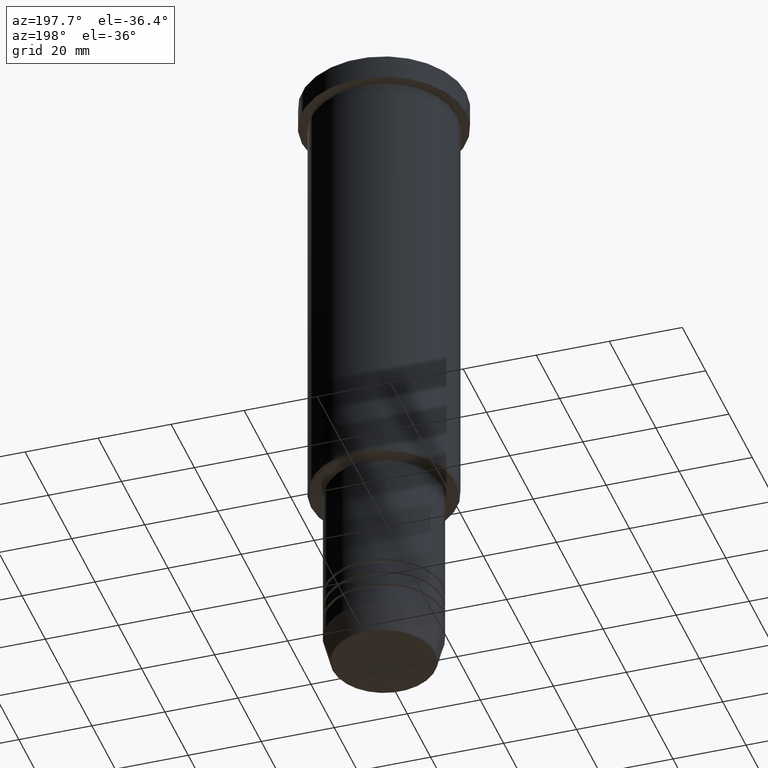
[diagram: clean part render]
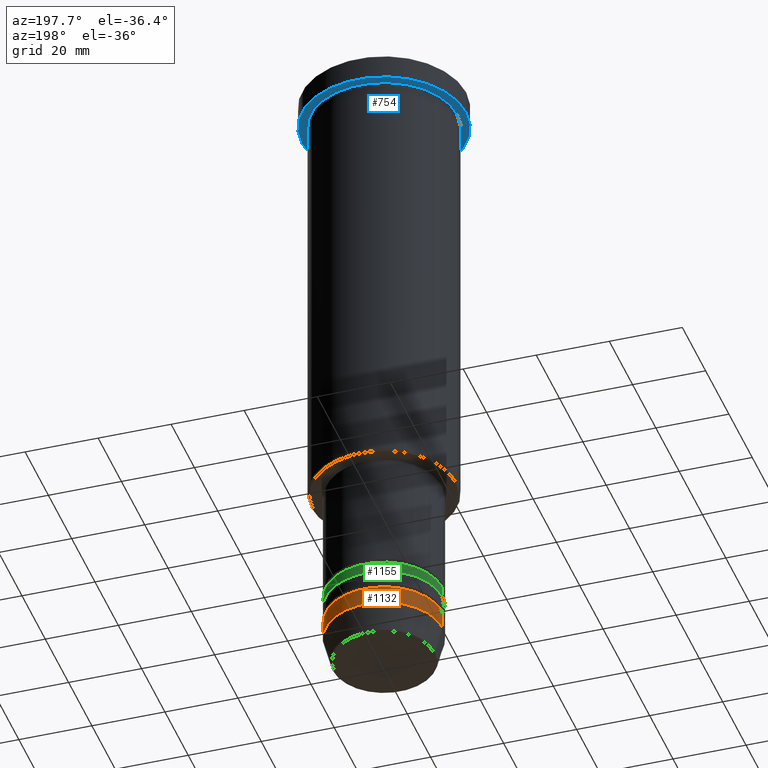
[diagram: same view with three faces highlighted in distinct colors, each labeled with its STEP entity id]
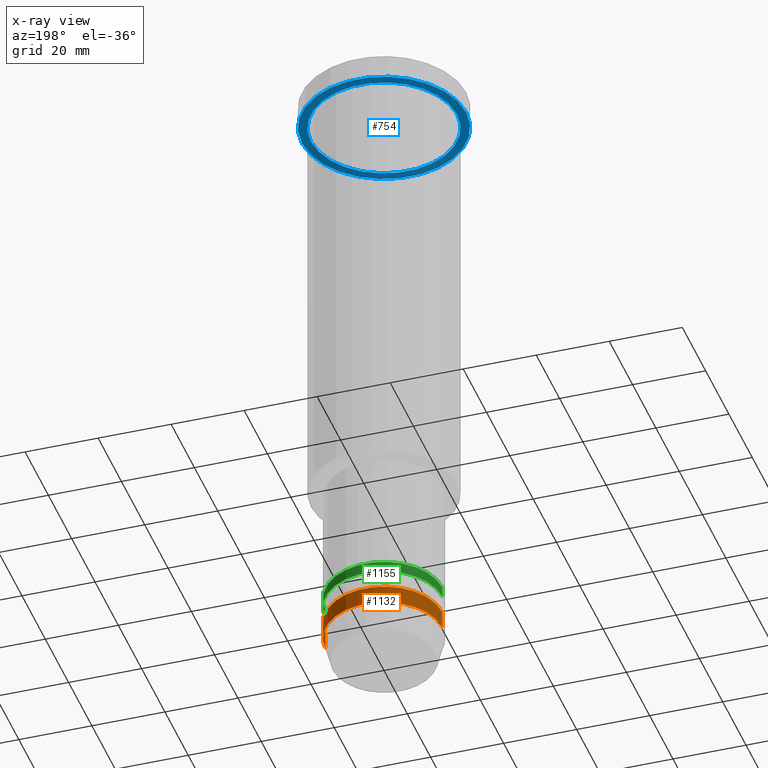
[diagram: x-ray of the same camera — body ghosted, the three highlighted faces saturated]
A machine part, auxiliary view with three faces highlighted in distinct colors.
The next image is the same camera in x-ray (body ghosted, the three faces saturated) — at least one of them is partly hidden behind the body in this view.
Their STEP definitions:

[orange] entity #1132 — the highlighted cylindrical surface (partial cylindrical patch) has radius 16 mm, axis along (-0, -0, 1).
#3 = EDGE_CURVE ( 'NONE', #394, #940, #1105, .T. ) ;
#55 = CARTESIAN_POINT ( 'NONE',  ( 0.000000000000000000, 0.000000000000000000, -172.5000000000000284 ) ) ;
#91 = CARTESIAN_POINT ( 'NONE',  ( -16.00000000000000000, 1.959434878635765131E-15, 0.000000000000000000 ) ) ;
#133 = CARTESIAN_POINT ( 'NONE',  ( 16.00000000000000000, 0.000000000000000000, 0.000000000000000000 ) ) ;
#174 = VERTEX_POINT ( 'NONE', #196 ) ;
#178 = EDGE_CURVE ( 'NONE', #940, #174, #477, .T. ) ;
#196 = CARTESIAN_POINT ( 'NONE',  ( -16.00000000000000000, 1.959434878635765131E-15, -167.5000000000000000 ) ) ;
#213 = EDGE_CURVE ( 'NONE', #803, #174, #297, .T. ) ;
#223 = EDGE_LOOP ( 'NONE', ( #1062, #368, #371, #779 ) ) ;
#297 = CIRCLE ( 'NONE', #608, 16.00000000000000000 ) ;
#347 = CYLINDRICAL_SURFACE ( 'NONE', #634, 16.00000000000000000 ) ;
#364 = CARTESIAN_POINT ( 'NONE',  ( 0.000000000000000000, 0.000000000000000000, 0.000000000000000000 ) ) ;
#365 = DIRECTION ( 'NONE',  ( 1.000000000000000000, 0.000000000000000000, 0.000000000000000000 ) ) ;
#368 = ORIENTED_EDGE ( 'NONE', *, *, #178, .T. ) ;
#371 = ORIENTED_EDGE ( 'NONE', *, *, #213, .F. ) ;
#379 = VECTOR ( 'NONE', #596, 1000.000000000000000 ) ;
#382 = DIRECTION ( 'NONE',  ( -0.000000000000000000, -0.000000000000000000, 1.000000000000000000 ) ) ;
#394 = VERTEX_POINT ( 'NONE', #997 ) ;
#453 = AXIS2_PLACEMENT_3D ( 'NONE', #55, #545, #365 ) ;
#477 = LINE ( 'NONE', #91, #1040 ) ;
#544 = FACE_OUTER_BOUND ( 'NONE', #223, .T. ) ;
#545 = DIRECTION ( 'NONE',  ( -0.000000000000000000, -0.000000000000000000, 1.000000000000000000 ) ) ;
#596 = DIRECTION ( 'NONE',  ( -0.000000000000000000, -0.000000000000000000, 1.000000000000000000 ) ) ;
#606 = CARTESIAN_POINT ( 'NONE',  ( 0.000000000000000000, 0.000000000000000000, -167.5000000000000000 ) ) ;
#608 = AXIS2_PLACEMENT_3D ( 'NONE', #606, #873, #963 ) ;
#634 = AXIS2_PLACEMENT_3D ( 'NONE', #364, #984, #725 ) ;
#663 = EDGE_CURVE ( 'NONE', #394, #803, #855, .T. ) ;
#725 = DIRECTION ( 'NONE',  ( 1.000000000000000000, 0.000000000000000000, 0.000000000000000000 ) ) ;
#779 = ORIENTED_EDGE ( 'NONE', *, *, #663, .F. ) ;
#803 = VERTEX_POINT ( 'NONE', #1152 ) ;
#855 = LINE ( 'NONE', #133, #379 ) ;
#873 = DIRECTION ( 'NONE',  ( -0.000000000000000000, -0.000000000000000000, 1.000000000000000000 ) ) ;
#897 = CARTESIAN_POINT ( 'NONE',  ( -16.00000000000000000, 1.959434878635765131E-15, -172.5000000000000284 ) ) ;
#940 = VERTEX_POINT ( 'NONE', #897 ) ;
#963 = DIRECTION ( 'NONE',  ( 1.000000000000000000, 0.000000000000000000, 0.000000000000000000 ) ) ;
#984 = DIRECTION ( 'NONE',  ( -0.000000000000000000, -0.000000000000000000, 1.000000000000000000 ) ) ;
#997 = CARTESIAN_POINT ( 'NONE',  ( 16.00000000000000000, 0.000000000000000000, -172.5000000000000284 ) ) ;
#1040 = VECTOR ( 'NONE', #382, 1000.000000000000000 ) ;
#1062 = ORIENTED_EDGE ( 'NONE', *, *, #3, .T. ) ;
#1105 = CIRCLE ( 'NONE', #453, 16.00000000000000000 ) ;
#1132 = ADVANCED_FACE ( 'NONE', ( #544 ), #347, .T. ) ;
#1152 = CARTESIAN_POINT ( 'NONE',  ( 16.00000000000000000, 0.000000000000000000, -167.5000000000000000 ) ) ;

[blue] entity #754 — the highlighted planar face has unit normal (0, 0, -1).
#40 = ORIENTED_EDGE ( 'NONE', *, *, #48, .F. ) ;
#48 = EDGE_CURVE ( 'NONE', #148, #607, #631, .T. ) ;
#68 = DIRECTION ( 'NONE',  ( -0.000000000000000000, -0.000000000000000000, 1.000000000000000000 ) ) ;
#111 = ORIENTED_EDGE ( 'NONE', *, *, #1114, .T. ) ;
#137 = AXIS2_PLACEMENT_3D ( 'NONE', #422, #782, #326 ) ;
#148 = VERTEX_POINT ( 'NONE', #373 ) ;
#183 = DIRECTION ( 'NONE',  ( -0.000000000000000000, -0.000000000000000000, 1.000000000000000000 ) ) ;
#214 = CARTESIAN_POINT ( 'NONE',  ( -20.00000000000000000, 0.000000000000000000, -6.999999999999995559 ) ) ;
#230 = FACE_OUTER_BOUND ( 'NONE', #964, .T. ) ;
#232 = CARTESIAN_POINT ( 'NONE',  ( 20.00000000000000000, 2.449293598294706513E-15, -6.999999999999995559 ) ) ;
#235 = DIRECTION ( 'NONE',  ( -1.000000000000000000, 0.000000000000000000, 0.000000000000000000 ) ) ;
#326 = DIRECTION ( 'NONE',  ( 1.000000000000000000, 0.000000000000000000, 0.000000000000000000 ) ) ;
#337 = ORIENTED_EDGE ( 'NONE', *, *, #835, .T. ) ;
#355 = CARTESIAN_POINT ( 'NONE',  ( 0.000000000000000000, 22.50000000000000000, -6.999999999999995559 ) ) ;
#359 = AXIS2_PLACEMENT_3D ( 'NONE', #355, #735, #972 ) ;
#373 = CARTESIAN_POINT ( 'NONE',  ( -22.50000000000000000, 2.755455298081544778E-15, -6.999999999999995559 ) ) ;
#410 = DIRECTION ( 'NONE',  ( -0.000000000000000000, -0.000000000000000000, 1.000000000000000000 ) ) ;
#422 = CARTESIAN_POINT ( 'NONE',  ( 0.000000000000000000, 0.000000000000000000, -6.999999999999995559 ) ) ;
#475 = AXIS2_PLACEMENT_3D ( 'NONE', #657, #68, #1126 ) ;
#488 = DIRECTION ( 'NONE',  ( 1.000000000000000000, 0.000000000000000000, 0.000000000000000000 ) ) ;
#528 = VERTEX_POINT ( 'NONE', #232 ) ;
#551 = ORIENTED_EDGE ( 'NONE', *, *, #753, .F. ) ;
#576 = AXIS2_PLACEMENT_3D ( 'NONE', #741, #183, #488 ) ;
#607 = VERTEX_POINT ( 'NONE', #968 ) ;
#631 = CIRCLE ( 'NONE', #576, 22.50000000000000000 ) ;
#657 = CARTESIAN_POINT ( 'NONE',  ( 0.000000000000000000, 0.000000000000000000, -6.999999999999995559 ) ) ;
#695 = VERTEX_POINT ( 'NONE', #214 ) ;
#697 = AXIS2_PLACEMENT_3D ( 'NONE', #1135, #410, #235 ) ;
#703 = FACE_BOUND ( 'NONE', #832, .T. ) ;
#730 = CIRCLE ( 'NONE', #137, 22.50000000000000000 ) ;
#731 = CIRCLE ( 'NONE', #697, 20.00000000000000000 ) ;
#735 = DIRECTION ( 'NONE',  ( 0.000000000000000000, 0.000000000000000000, -1.000000000000000000 ) ) ;
#741 = CARTESIAN_POINT ( 'NONE',  ( 0.000000000000000000, 0.000000000000000000, -6.999999999999995559 ) ) ;
#753 = EDGE_CURVE ( 'NONE', #607, #148, #730, .T. ) ;
#754 = ADVANCED_FACE ( 'NONE', ( #703, #230 ), #958, .T. ) ;
#782 = DIRECTION ( 'NONE',  ( -0.000000000000000000, -0.000000000000000000, 1.000000000000000000 ) ) ;
#832 = EDGE_LOOP ( 'NONE', ( #111, #337 ) ) ;
#835 = EDGE_CURVE ( 'NONE', #528, #695, #1125, .T. ) ;
#958 = PLANE ( 'NONE',  #359 ) ;
#964 = EDGE_LOOP ( 'NONE', ( #551, #40 ) ) ;
#968 = CARTESIAN_POINT ( 'NONE',  ( 22.50000000000000000, 0.000000000000000000, -6.999999999999995559 ) ) ;
#972 = DIRECTION ( 'NONE',  ( -1.000000000000000000, 0.000000000000000000, -0.000000000000000000 ) ) ;
#1114 = EDGE_CURVE ( 'NONE', #695, #528, #731, .T. ) ;
#1125 = CIRCLE ( 'NONE', #475, 20.00000000000000000 ) ;
#1126 = DIRECTION ( 'NONE',  ( -1.000000000000000000, 0.000000000000000000, 0.000000000000000000 ) ) ;
#1135 = CARTESIAN_POINT ( 'NONE',  ( 0.000000000000000000, 0.000000000000000000, -6.999999999999995559 ) ) ;

[green] entity #1155 — the highlighted cylindrical surface (partial cylindrical patch) has radius 16 mm, axis along (-0, -0, 1).
#23 = DIRECTION ( 'NONE',  ( -0.000000000000000000, -0.000000000000000000, 1.000000000000000000 ) ) ;
#27 = AXIS2_PLACEMENT_3D ( 'NONE', #344, #360, #791 ) ;
#54 = DIRECTION ( 'NONE',  ( -0.000000000000000000, -0.000000000000000000, 1.000000000000000000 ) ) ;
#109 = EDGE_CURVE ( 'NONE', #272, #760, #1082, .T. ) ;
#125 = ORIENTED_EDGE ( 'NONE', *, *, #109, .F. ) ;
#215 = DIRECTION ( 'NONE',  ( -0.000000000000000000, -0.000000000000000000, 1.000000000000000000 ) ) ;
#227 = LINE ( 'NONE', #497, #707 ) ;
#251 = EDGE_CURVE ( 'NONE', #841, #272, #1035, .T. ) ;
#268 = EDGE_LOOP ( 'NONE', ( #1093, #345, #125, #647 ) ) ;
#269 = EDGE_CURVE ( 'NONE', #690, #760, #227, .T. ) ;
#272 = VERTEX_POINT ( 'NONE', #598 ) ;
#307 = CARTESIAN_POINT ( 'NONE',  ( 16.00000000000000000, 0.000000000000000000, 0.000000000000000000 ) ) ;
#344 = CARTESIAN_POINT ( 'NONE',  ( 0.000000000000000000, 0.000000000000000000, -162.5000000000000000 ) ) ;
#345 = ORIENTED_EDGE ( 'NONE', *, *, #269, .T. ) ;
#360 = DIRECTION ( 'NONE',  ( -0.000000000000000000, -0.000000000000000000, 1.000000000000000000 ) ) ;
#401 = VECTOR ( 'NONE', #215, 1000.000000000000000 ) ;
#470 = CARTESIAN_POINT ( 'NONE',  ( 0.000000000000000000, 0.000000000000000000, -159.5000000000000000 ) ) ;
#471 = AXIS2_PLACEMENT_3D ( 'NONE', #470, #23, #937 ) ;
#497 = CARTESIAN_POINT ( 'NONE',  ( -16.00000000000000000, 1.959434878635765131E-15, 0.000000000000000000 ) ) ;
#506 = CARTESIAN_POINT ( 'NONE',  ( -16.00000000000000355, 1.959434878635765526E-15, -162.5000000000000000 ) ) ;
#507 = EDGE_CURVE ( 'NONE', #841, #690, #745, .T. ) ;
#529 = CARTESIAN_POINT ( 'NONE',  ( 0.000000000000000000, 0.000000000000000000, 0.000000000000000000 ) ) ;
#598 = CARTESIAN_POINT ( 'NONE',  ( 16.00000000000000000, 0.000000000000000000, -159.5000000000000000 ) ) ;
#647 = ORIENTED_EDGE ( 'NONE', *, *, #251, .F. ) ;
#690 = VERTEX_POINT ( 'NONE', #506 ) ;
#707 = VECTOR ( 'NONE', #1144, 1000.000000000000000 ) ;
#745 = CIRCLE ( 'NONE', #27, 16.00000000000000355 ) ;
#760 = VERTEX_POINT ( 'NONE', #1167 ) ;
#767 = AXIS2_PLACEMENT_3D ( 'NONE', #529, #54, #905 ) ;
#791 = DIRECTION ( 'NONE',  ( 1.000000000000000000, 0.000000000000000000, 0.000000000000000000 ) ) ;
#841 = VERTEX_POINT ( 'NONE', #1030 ) ;
#905 = DIRECTION ( 'NONE',  ( 1.000000000000000000, 0.000000000000000000, 0.000000000000000000 ) ) ;
#937 = DIRECTION ( 'NONE',  ( 1.000000000000000000, 0.000000000000000000, 0.000000000000000000 ) ) ;
#970 = CYLINDRICAL_SURFACE ( 'NONE', #767, 16.00000000000000000 ) ;
#1030 = CARTESIAN_POINT ( 'NONE',  ( 16.00000000000000355, 0.000000000000000000, -162.5000000000000000 ) ) ;
#1035 = LINE ( 'NONE', #307, #401 ) ;
#1082 = CIRCLE ( 'NONE', #471, 16.00000000000000000 ) ;
#1093 = ORIENTED_EDGE ( 'NONE', *, *, #507, .T. ) ;
#1144 = DIRECTION ( 'NONE',  ( -0.000000000000000000, -0.000000000000000000, 1.000000000000000000 ) ) ;
#1155 = ADVANCED_FACE ( 'NONE', ( #1159 ), #970, .T. ) ;
#1159 = FACE_OUTER_BOUND ( 'NONE', #268, .T. ) ;
#1167 = CARTESIAN_POINT ( 'NONE',  ( -16.00000000000000000, 1.959434878635765131E-15, -159.5000000000000000 ) ) ;